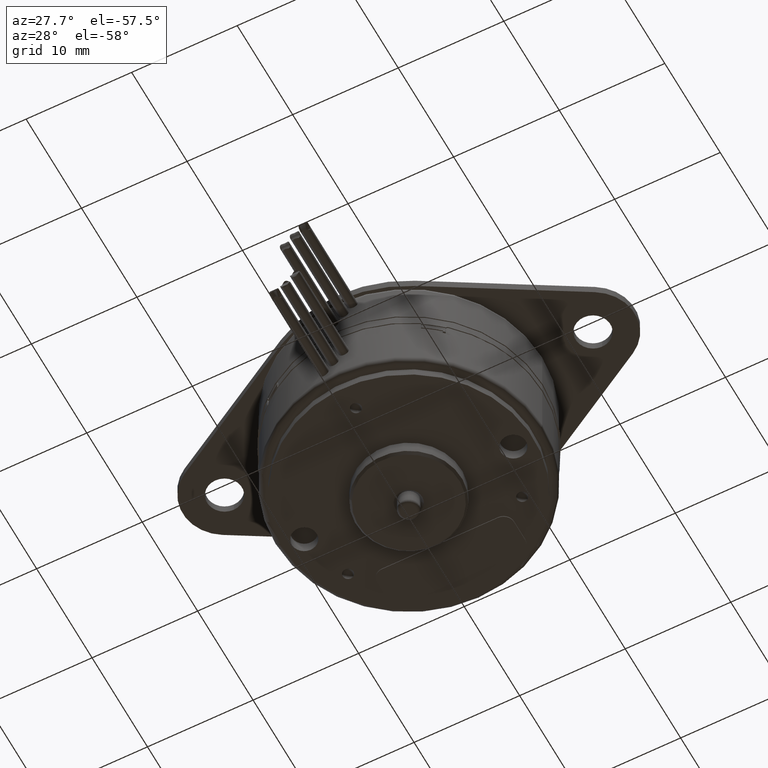
[diagram: clean part render]
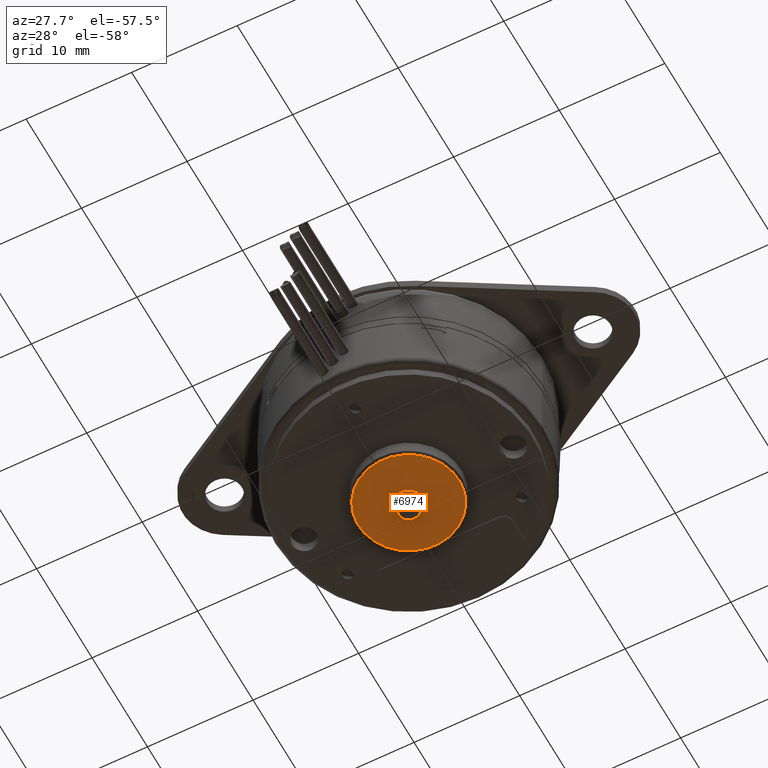
[diagram: same view with one face highlighted and labeled with its STEP entity id]
A machine part, auxiliary view. The second image highlights one B-rep face of the part: STEP entity #6974.
In plain terms, the highlighted planar face has unit normal (0, 0, 1).
Its self-contained STEP definition (entity closure, byte-faithful):
#1928=CARTESIAN_POINT('',(0.E0,0.E0,-3.2E-1));
#1929=DIRECTION('',(0.E0,0.E0,1.E0));
#1930=DIRECTION('',(-8.660254037844E-1,-5.E-1,0.E0));
#1931=AXIS2_PLACEMENT_3D('',#1928,#1929,#1930);
#1933=CARTESIAN_POINT('',(0.E0,0.E0,-3.2E-1));
#1934=DIRECTION('',(0.E0,0.E0,1.E0));
#1935=DIRECTION('',(8.660254037844E-1,5.E-1,0.E0));
#1936=AXIS2_PLACEMENT_3D('',#1933,#1934,#1935);
#1938=CARTESIAN_POINT('',(0.E0,0.E0,-3.2E-1));
#1939=DIRECTION('',(0.E0,0.E0,-1.E0));
#1940=DIRECTION('',(-8.660254037844E-1,-5.E-1,0.E0));
#1941=AXIS2_PLACEMENT_3D('',#1938,#1939,#1940);
#1943=CARTESIAN_POINT('',(0.E0,0.E0,-3.2E-1));
#1944=DIRECTION('',(0.E0,0.E0,-1.E0));
#1945=DIRECTION('',(8.660254037844E-1,5.E-1,0.E0));
#1946=AXIS2_PLACEMENT_3D('',#1943,#1944,#1945);
#3992=CARTESIAN_POINT('',(1.632102847659E-1,9.422950184415E-2,-3.2E-1));
#3993=VERTEX_POINT('',#3992);
#3994=CARTESIAN_POINT('',(-1.632102847659E-1,-9.422950184413E-2,-3.2E-1));
#3995=VERTEX_POINT('',#3994);
#3996=CARTESIAN_POINT('',(-4.330127018921E-2,-2.5E-2,-3.2E-1));
#3997=CARTESIAN_POINT('',(4.330127018921E-2,2.5E-2,-3.2E-1));
#3998=VERTEX_POINT('',#3996);
#3999=VERTEX_POINT('',#3997);
#6959=CARTESIAN_POINT('',(0.E0,0.E0,-3.2E-1));
#6960=DIRECTION('',(0.E0,0.E0,1.E0));
#6961=DIRECTION('',(-8.660254037844E-1,-5.E-1,0.E0));
#6962=AXIS2_PLACEMENT_3D('',#6959,#6960,#6961);
#6963=PLANE('',#6962);
#6964=ORIENTED_EDGE('',*,*,#6938,.T.);
#6965=ORIENTED_EDGE('',*,*,#6954,.T.);
#6966=EDGE_LOOP('',(#6964,#6965));
#6967=FACE_OUTER_BOUND('',#6966,.F.);
#6969=ORIENTED_EDGE('',*,*,#6968,.T.);
#6971=ORIENTED_EDGE('',*,*,#6970,.T.);
#6972=EDGE_LOOP('',(#6969,#6971));
#6973=FACE_BOUND('',#6972,.F.);
#6974=ADVANCED_FACE('',(#6967,#6973),#6963,.F.);
#1932=CIRCLE('',#1931,1.884590036883E-1);
#1937=CIRCLE('',#1936,1.884590036883E-1);
#1942=CIRCLE('',#1941,4.999999999999E-2);
#1947=CIRCLE('',#1946,4.999999999999E-2);
#6938=EDGE_CURVE('',#3995,#3993,#1932,.T.);
#6954=EDGE_CURVE('',#3993,#3995,#1937,.T.);
#6968=EDGE_CURVE('',#3998,#3999,#1942,.T.);
#6970=EDGE_CURVE('',#3999,#3998,#1947,.T.);